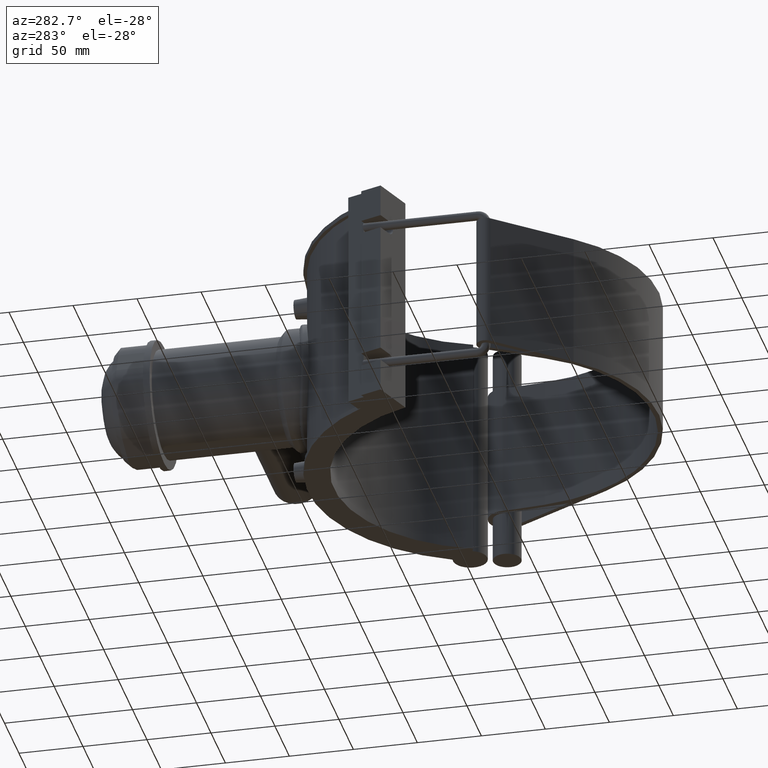
[diagram: clean part render]
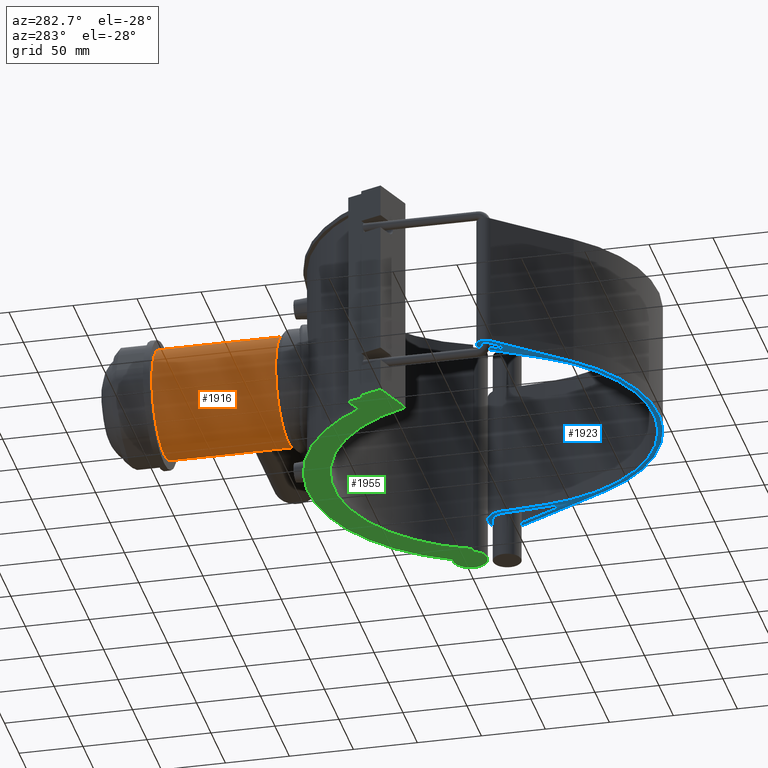
[diagram: same view with three faces highlighted in distinct colors, each labeled with its STEP entity id]
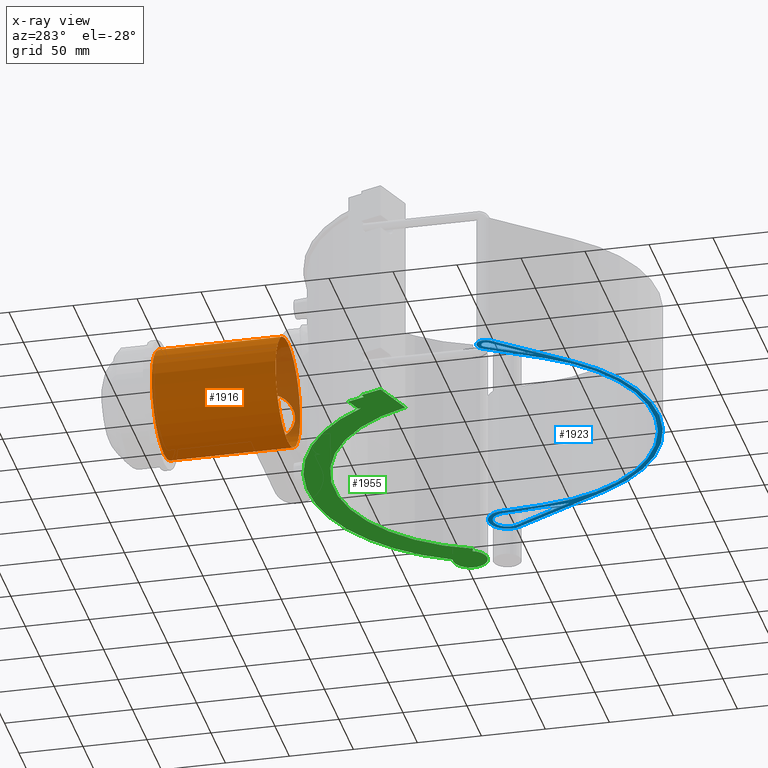
[diagram: x-ray of the same camera — body ghosted, the three highlighted faces saturated]
A machine part, auxiliary view with three faces highlighted in distinct colors.
The next image is the same camera in x-ray (body ghosted, the three faces saturated) — at least one of them is partly hidden behind the body in this view.
Their STEP definitions:

[orange] entity #1916 — the highlighted cylindrical surface (bore or boss wall) has radius 42.5 mm, axis along (0, 1, 0).
#370=FACE_BOUND('',#626,.T.);
#371=FACE_BOUND('',#627,.T.);
#404=B_SPLINE_CURVE_WITH_KNOTS('',3,(#3004,#3005,#3006,#3007,#3008,#3009,
#3010,#3011,#3012,#3013,#3014,#3015,#3016,#3017,#3018,#3019,#3020,#3021,
#3022,#3023,#3024,#3025,#3026,#3027,#3028,#3029,#3030,#3031,#3032,#3033,
#3034,#3035,#3036,#3037,#3038,#3039,#3040,#3041,#3042,#3043,#3044,#3045,
#3046,#3047,#3048,#3049,#3050,#3051,#3052,#3053,#3054,#3055,#3056,#3057,
#3058,#3059,#3060,#3061,#3062,#3063,#3064,#3065,#3066,#3067,#3068,#3069),
 .UNSPECIFIED.,.T.,.F.,(4,2,2,2,2,2,2,2,2,2,2,2,2,2,2,2,2,2,2,2,2,2,2,2,
2,2,2,2,2,2,2,2,4),(0.,0.383791804232439,0.767583608464878,1.15137541269732,
1.53516721692976,1.9181640537232,2.30116089051664,2.68415772731009,3.06715456410353,
3.45015140089698,3.83314823769042,4.21614507448387,4.59914191127731,4.98293371550975,
5.36672551974219,5.75051732397463,6.13430912820706,6.5181009324395,6.90189273667194,
7.28568454090438,7.66947634513682,8.05247318193026,8.43547001872371,8.81846685551715,
9.2014636923106,9.58446052910404,9.96745736589748,10.3504542026909,10.7334510394844,
11.1172428437168,11.5010346479493,11.8848264521817,12.2686182564141),
 .UNSPECIFIED.);
#426=CYLINDRICAL_SURFACE('',#2070,42.5);
#495=FACE_OUTER_BOUND('',#625,.T.);
#625=EDGE_LOOP('',(#1447));
#626=EDGE_LOOP('',(#1448));
#627=EDGE_LOOP('',(#1449));
#758=CIRCLE('',#2053,42.5);
#765=CIRCLE('',#2071,42.5000000000001);
#825=VERTEX_POINT('',#3003);
#869=VERTEX_POINT('',#3208);
#879=VERTEX_POINT('',#3277);
#1003=EDGE_CURVE('',#825,#825,#404,.T.);
#1071=EDGE_CURVE('',#869,#869,#758,.T.);
#1090=EDGE_CURVE('',#879,#879,#765,.T.);
#1447=ORIENTED_EDGE('',*,*,#1071,.T.);
#1448=ORIENTED_EDGE('',*,*,#1003,.T.);
#1449=ORIENTED_EDGE('',*,*,#1090,.F.);
#1916=ADVANCED_FACE('',(#495,#370,#371),#426,.T.);
#2053=AXIS2_PLACEMENT_3D('',#3209,#2369,#2370);
#2070=AXIS2_PLACEMENT_3D('',#3276,#2414,#2415);
#2071=AXIS2_PLACEMENT_3D('',#3278,#2416,#2417);
#2369=DIRECTION('center_axis',(0.,1.,3.06161699786838E-16));
#2370=DIRECTION('ref_axis',(1.,0.,0.));
#2414=DIRECTION('center_axis',(0.,1.,3.06161699786838E-16));
#2415=DIRECTION('ref_axis',(0.,0.,1.));
#2416=DIRECTION('center_axis',(0.,1.,3.06161699786838E-16));
#2417=DIRECTION('ref_axis',(1.,0.,0.));
#3003=CARTESIAN_POINT('',(37.5,185.,-20.));
#3004=CARTESIAN_POINT('Ctrl Pts',(37.5,185.,-20.));
#3005=CARTESIAN_POINT('Ctrl Pts',(37.5,183.720693985892,-20.));
#3006=CARTESIAN_POINT('Ctrl Pts',(37.5673632733615,182.40576138595,-19.8753096853659));
#3007=CARTESIAN_POINT('Ctrl Pts',(37.8360613140512,179.804730317012,-19.3589044712904));
#3008=CARTESIAN_POINT('Ctrl Pts',(38.0369889727961,178.51855047852,-18.9673876879955));
#3009=CARTESIAN_POINT('Ctrl Pts',(38.531539817867,176.062642785402,-17.9414242521939));
#3010=CARTESIAN_POINT('Ctrl Pts',(38.8249384165117,174.890581166041,-17.3061626768596));
#3011=CARTESIAN_POINT('Ctrl Pts',(39.4436368473074,172.727062527526,-15.8454606042391));
#3012=CARTESIAN_POINT('Ctrl Pts',(39.7683403657247,171.735561513551,-15.0198327610134));
#3013=CARTESIAN_POINT('Ctrl Pts',(40.3871158287734,169.981985257604,-13.2662565050662));
#3014=CARTESIAN_POINT('Ctrl Pts',(40.7040092831187,169.156608033693,-12.2756473866188));
#3015=CARTESIAN_POINT('Ctrl Pts',(41.2948028589662,167.695161354208,-10.1117331499041));
#3016=CARTESIAN_POINT('Ctrl Pts',(41.5682330065405,167.058977747585,-8.9383768407114));
#3017=CARTESIAN_POINT('Ctrl Pts',(42.02171956684,166.031942458684,-6.47978870451485));
#3018=CARTESIAN_POINT('Ctrl Pts',(42.2018577443893,165.640271960223,-5.19225527482705));
#3019=CARTESIAN_POINT('Ctrl Pts',(42.4410711513244,165.124215910523,-2.59071253669387));
#3020=CARTESIAN_POINT('Ctrl Pts',(42.5,165.,-1.27665612264482));
#3021=CARTESIAN_POINT('Ctrl Pts',(42.5,165.,1.27665612264481));
#3022=CARTESIAN_POINT('Ctrl Pts',(42.4410711513244,165.124215910523,2.59071253669387));
#3023=CARTESIAN_POINT('Ctrl Pts',(42.2018577443893,165.640271960223,5.19225527482705));
#3024=CARTESIAN_POINT('Ctrl Pts',(42.02171956684,166.031942458684,6.47978870451485));
#3025=CARTESIAN_POINT('Ctrl Pts',(41.5682330065405,167.058977747585,8.9383768407114));
#3026=CARTESIAN_POINT('Ctrl Pts',(41.2948028589662,167.695161354208,10.1117331499041));
#3027=CARTESIAN_POINT('Ctrl Pts',(40.7040092831187,169.156608033693,12.2756473866188));
#3028=CARTESIAN_POINT('Ctrl Pts',(40.3871158287735,169.981985257604,13.2662565050662));
#3029=CARTESIAN_POINT('Ctrl Pts',(39.7683403657247,171.735561513551,15.0198327610134));
#3030=CARTESIAN_POINT('Ctrl Pts',(39.4436368473074,172.727062527526,15.8454606042392));
#3031=CARTESIAN_POINT('Ctrl Pts',(38.8249384165117,174.890581166041,17.3061626768597));
#3032=CARTESIAN_POINT('Ctrl Pts',(38.531539817867,176.062642785402,17.9414242521939));
#3033=CARTESIAN_POINT('Ctrl Pts',(38.0369889727961,178.51855047852,18.9673876879955));
#3034=CARTESIAN_POINT('Ctrl Pts',(37.8360613140512,179.804730317012,19.3589044712904));
#3035=CARTESIAN_POINT('Ctrl Pts',(37.5673632733615,182.40576138595,19.8753096853659));
#3036=CARTESIAN_POINT('Ctrl Pts',(37.5,183.720693985892,20.));
#3037=CARTESIAN_POINT('Ctrl Pts',(37.5,186.279306014108,20.));
#3038=CARTESIAN_POINT('Ctrl Pts',(37.5673632733615,187.59423861405,19.8753096853659));
#3039=CARTESIAN_POINT('Ctrl Pts',(37.8360613140512,190.195269682988,19.3589044712904));
#3040=CARTESIAN_POINT('Ctrl Pts',(38.0369889727961,191.48144952148,18.9673876879955));
#3041=CARTESIAN_POINT('Ctrl Pts',(38.531539817867,193.937357214598,17.9414242521939));
#3042=CARTESIAN_POINT('Ctrl Pts',(38.8249384165117,195.109418833959,17.3061626768596));
#3043=CARTESIAN_POINT('Ctrl Pts',(39.4436368473074,197.272937472474,15.8454606042392));
#3044=CARTESIAN_POINT('Ctrl Pts',(39.7683403657247,198.264438486449,15.0198327610134));
#3045=CARTESIAN_POINT('Ctrl Pts',(40.3871158287735,200.018014742396,13.2662565050662));
#3046=CARTESIAN_POINT('Ctrl Pts',(40.7040092831187,200.843391966307,12.2756473866188));
#3047=CARTESIAN_POINT('Ctrl Pts',(41.2948028589662,202.304838645792,10.1117331499041));
#3048=CARTESIAN_POINT('Ctrl Pts',(41.5682330065405,202.941022252415,8.9383768407114));
#3049=CARTESIAN_POINT('Ctrl Pts',(42.02171956684,203.968057541316,6.47978870451485));
#3050=CARTESIAN_POINT('Ctrl Pts',(42.2018577443893,204.359728039777,5.19225527482705));
#3051=CARTESIAN_POINT('Ctrl Pts',(42.4410711513244,204.875784089477,2.59071253669387));
#3052=CARTESIAN_POINT('Ctrl Pts',(42.5,205.,1.27665612264482));
#3053=CARTESIAN_POINT('Ctrl Pts',(42.5,205.,-1.27665612264481));
#3054=CARTESIAN_POINT('Ctrl Pts',(42.4410711513244,204.875784089477,-2.59071253669386));
#3055=CARTESIAN_POINT('Ctrl Pts',(42.2018577443893,204.359728039777,-5.19225527482704));
#3056=CARTESIAN_POINT('Ctrl Pts',(42.02171956684,203.968057541316,-6.47978870451483));
#3057=CARTESIAN_POINT('Ctrl Pts',(41.5682330065405,202.941022252415,-8.93837684071139));
#3058=CARTESIAN_POINT('Ctrl Pts',(41.2948028589662,202.304838645792,-10.1117331499041));
#3059=CARTESIAN_POINT('Ctrl Pts',(40.7040092831187,200.843391966307,-12.2756473866188));
#3060=CARTESIAN_POINT('Ctrl Pts',(40.3871158287734,200.018014742396,-13.2662565050662));
#3061=CARTESIAN_POINT('Ctrl Pts',(39.7683403657247,198.264438486449,-15.0198327610134));
#3062=CARTESIAN_POINT('Ctrl Pts',(39.4436368473074,197.272937472474,-15.8454606042392));
#3063=CARTESIAN_POINT('Ctrl Pts',(38.8249384165117,195.109418833959,-17.3061626768597));
#3064=CARTESIAN_POINT('Ctrl Pts',(38.531539817867,193.937357214598,-17.9414242521939));
#3065=CARTESIAN_POINT('Ctrl Pts',(38.0369889727961,191.48144952148,-18.9673876879955));
#3066=CARTESIAN_POINT('Ctrl Pts',(37.8360613140512,190.195269682988,-19.3589044712904));
#3067=CARTESIAN_POINT('Ctrl Pts',(37.5673632733615,187.59423861405,-19.8753096853659));
#3068=CARTESIAN_POINT('Ctrl Pts',(37.5,186.279306014108,-20.));
#3069=CARTESIAN_POINT('Ctrl Pts',(37.5,185.,-20.));
#3208=CARTESIAN_POINT('',(0.,161.,42.5));
#3209=CARTESIAN_POINT('Origin',(0.,161.,1.10218211923262E-14));
#3276=CARTESIAN_POINT('Origin',(0.,209.375,2.58323934195145E-14));
#3277=CARTESIAN_POINT('',(0.,257.75,42.5000000000001));
#3278=CARTESIAN_POINT('Origin',(0.,257.75,4.06429656467028E-14));

[blue] entity #1923 — the highlighted planar face has unit normal (0, 0, 1).
#95=LINE('',#3318,#256);
#99=LINE('',#3326,#260);
#102=LINE('',#3337,#263);
#103=LINE('',#3341,#264);
#104=LINE('',#3345,#265);
#105=LINE('',#3349,#266);
#106=LINE('',#3355,#267);
#107=LINE('',#3356,#268);
#256=VECTOR('',#2430,52.9196756847128);
#260=VECTOR('',#2436,52.9196756847128);
#263=VECTOR('',#2445,87.3267515625168);
#264=VECTOR('',#2448,72.0453404647995);
#265=VECTOR('',#2451,49.6257854616819);
#266=VECTOR('',#2454,23.4220609933609);
#267=VECTOR('',#2459,39.6138549528074);
#268=VECTOR('',#2460,39.6138549528074);
#374=FACE_BOUND('',#637,.T.);
#375=FACE_BOUND('',#638,.T.);
#502=FACE_OUTER_BOUND('',#636,.T.);
#636=EDGE_LOOP('',(#1467,#1468,#1469,#1470,#1471,#1472,#1473,#1474,#1475,
#1476));
#637=EDGE_LOOP('',(#1477,#1478,#1479));
#638=EDGE_LOOP('',(#1480,#1481,#1482));
#767=CIRCLE('',#2080,14.8076923076923);
#768=CIRCLE('',#2081,14.8076923076923);
#769=CIRCLE('',#2082,128.75);
#770=CIRCLE('',#2083,7.25);
#771=CIRCLE('',#2084,125.);
#772=CIRCLE('',#2085,125.);
#773=CIRCLE('',#2086,3.49999999999997);
#774=CIRCLE('',#2087,11.0576923076923);
#882=VERTEX_POINT('',#3316);
#883=VERTEX_POINT('',#3317);
#886=VERTEX_POINT('',#3325);
#888=VERTEX_POINT('',#3331);
#889=VERTEX_POINT('',#3332);
#890=VERTEX_POINT('',#3334);
#891=VERTEX_POINT('',#3336);
#892=VERTEX_POINT('',#3338);
#893=VERTEX_POINT('',#3340);
#894=VERTEX_POINT('',#3342);
#895=VERTEX_POINT('',#3344);
#896=VERTEX_POINT('',#3346);
#897=VERTEX_POINT('',#3348);
#898=VERTEX_POINT('',#3351);
#899=VERTEX_POINT('',#3352);
#900=VERTEX_POINT('',#3354);
#1095=EDGE_CURVE('',#882,#883,#95,.T.);
#1099=EDGE_CURVE('',#883,#886,#99,.T.);
#1102=EDGE_CURVE('',#888,#889,#767,.T.);
#1103=EDGE_CURVE('',#889,#890,#768,.T.);
#1104=EDGE_CURVE('',#890,#891,#102,.T.);
#1105=EDGE_CURVE('',#891,#892,#769,.T.);
#1106=EDGE_CURVE('',#892,#893,#103,.T.);
#1107=EDGE_CURVE('',#893,#894,#770,.T.);
#1108=EDGE_CURVE('',#894,#895,#104,.T.);
#1109=EDGE_CURVE('',#895,#896,#771,.T.);
#1110=EDGE_CURVE('',#896,#897,#105,.T.);
#1111=EDGE_CURVE('',#888,#897,#772,.T.);
#1112=EDGE_CURVE('',#898,#899,#773,.T.);
#1113=EDGE_CURVE('',#899,#900,#106,.T.);
#1114=EDGE_CURVE('',#900,#898,#107,.T.);
#1115=EDGE_CURVE('',#882,#886,#774,.T.);
#1467=ORIENTED_EDGE('',*,*,#1102,.T.);
#1468=ORIENTED_EDGE('',*,*,#1103,.T.);
#1469=ORIENTED_EDGE('',*,*,#1104,.T.);
#1470=ORIENTED_EDGE('',*,*,#1105,.T.);
#1471=ORIENTED_EDGE('',*,*,#1106,.T.);
#1472=ORIENTED_EDGE('',*,*,#1107,.T.);
#1473=ORIENTED_EDGE('',*,*,#1108,.T.);
#1474=ORIENTED_EDGE('',*,*,#1109,.T.);
#1475=ORIENTED_EDGE('',*,*,#1110,.T.);
#1476=ORIENTED_EDGE('',*,*,#1111,.F.);
#1477=ORIENTED_EDGE('',*,*,#1112,.T.);
#1478=ORIENTED_EDGE('',*,*,#1113,.T.);
#1479=ORIENTED_EDGE('',*,*,#1114,.T.);
#1480=ORIENTED_EDGE('',*,*,#1095,.T.);
#1481=ORIENTED_EDGE('',*,*,#1099,.T.);
#1482=ORIENTED_EDGE('',*,*,#1115,.F.);
#1829=PLANE('',#2079);
#1923=ADVANCED_FACE('',(#502,#374,#375),#1829,.F.);
#2079=AXIS2_PLACEMENT_3D('',#3330,#2439,#2440);
#2080=AXIS2_PLACEMENT_3D('',#3333,#2441,#2442);
#2081=AXIS2_PLACEMENT_3D('',#3335,#2443,#2444);
#2082=AXIS2_PLACEMENT_3D('',#3339,#2446,#2447);
#2083=AXIS2_PLACEMENT_3D('',#3343,#2449,#2450);
#2084=AXIS2_PLACEMENT_3D('',#3347,#2452,#2453);
#2085=AXIS2_PLACEMENT_3D('',#3350,#2455,#2456);
#2086=AXIS2_PLACEMENT_3D('',#3353,#2457,#2458);
#2087=AXIS2_PLACEMENT_3D('',#3357,#2461,#2462);
#2430=DIRECTION('',(-0.0905873526607484,-0.995888513608786,0.));
#2436=DIRECTION('',(0.481783564841131,0.876290246806942,0.));
#2439=DIRECTION('center_axis',(0.,0.,1.));
#2440=DIRECTION('ref_axis',(1.,0.,0.));
#2441=DIRECTION('center_axis',(0.,0.,-1.));
#2442=DIRECTION('ref_axis',(0.333937766224138,-0.942595124265574,0.));
#2443=DIRECTION('center_axis',(0.,0.,-1.));
#2444=DIRECTION('ref_axis',(0.333937766224138,-0.942595124265574,0.));
#2445=DIRECTION('',(-0.481783564841131,-0.876290246806942,0.));
#2446=DIRECTION('center_axis',(0.,0.,-1.));
#2447=DIRECTION('ref_axis',(0.98858601250743,0.150657545030643,0.));
#2448=DIRECTION('',(-0.654222560450905,0.756302083427688,0.));
#2449=DIRECTION('center_axis',(0.,0.,-1.));
#2450=DIRECTION('ref_axis',(-1.,0.,0.));
#2451=DIRECTION('',(0.511479804338621,-0.859295298342616,0.));
#2452=DIRECTION('center_axis',(0.,0.,1.));
#2453=DIRECTION('ref_axis',(0.859295298342616,0.511479804338621,0.));
#2454=DIRECTION('',(0.090587352660749,0.995888513608786,0.));
#2455=DIRECTION('center_axis',(0.,0.,-1.));
#2456=DIRECTION('ref_axis',(0.998677892414806,-0.0514049336340487,0.));
#2457=DIRECTION('center_axis',(0.,0.,1.));
#2458=DIRECTION('ref_axis',(0.,-1.,0.));
#2459=DIRECTION('',(0.654222560450905,-0.756302083427688,0.));
#2460=DIRECTION('',(-0.511479804338621,0.859295298342616,0.));
#2461=DIRECTION('center_axis',(0.,0.,-1.));
#2462=DIRECTION('ref_axis',(1.,0.,0.));
#3316=CARTESIAN_POINT('',(130.906897846979,22.6297365660324,-52.8));
#3317=CARTESIAN_POINT('',(126.113044523036,-30.0723605922753,-52.8));
#3318=CARTESIAN_POINT('',(123.663223567475,-57.0049121944555,-52.8));
#3325=CARTESIAN_POINT('',(151.608874524653,16.300635074425,-52.8));
#3326=CARTESIAN_POINT('',(116.363818225473,-47.8047046195874,-52.8));
#3330=CARTESIAN_POINT('Origin',(12.2062893552673,-74.02203081777,-52.8));
#3331=CARTESIAN_POINT('',(127.112526086027,21.8078621826871,-52.8));
#3332=CARTESIAN_POINT('',(137.721878529248,35.8284318855429,-52.8));
#3333=CARTESIAN_POINT('Origin',(141.91912660323,21.6280494933414,-52.8));
#3334=CARTESIAN_POINT('',(154.894962950179,14.4939467062708,-52.8));
#3335=CARTESIAN_POINT('Origin',(141.91912660323,21.6280494933414,-52.8));
#3336=CARTESIAN_POINT('',(112.822369276394,-62.0296339732956,-52.8));
#3337=CARTESIAN_POINT('',(112.822369276394,-62.0296339732956,-52.8));
#3338=CARTESIAN_POINT('',(-97.3738932413148,-84.2311546580541,-52.8));
#3339=CARTESIAN_POINT('Origin',(0.,0.,-52.8));
#3340=CARTESIAN_POINT('',(-144.507580348753,-29.7431135632691,-52.8));
#3341=CARTESIAN_POINT('',(-144.507580348753,-29.7431135632691,-52.8));
#3342=CARTESIAN_POINT('',(-132.794499330919,-21.291771418545,-52.8));
#3343=CARTESIAN_POINT('Origin',(-139.024390243902,-25.,-52.8));
#3344=CARTESIAN_POINT('',(-107.411912292827,-63.9349755423277,-52.8));
#3345=CARTESIAN_POINT('',(-107.411912292827,-63.9349755423277,-52.8));
#3346=CARTESIAN_POINT('',(124.486064201098,-11.3234190825937,-52.8));
#3347=CARTESIAN_POINT('Origin',(0.,0.,-52.8));
#3348=CARTESIAN_POINT('',(126.607806700345,12.0023424257388,-52.8));
#3349=CARTESIAN_POINT('',(127.280449110332,19.3971589226953,-52.8));
#3350=CARTESIAN_POINT('Origin',(2.12174249924715,23.3257615083324,-52.8));
#3351=CARTESIAN_POINT('',(-136.016856699703,-23.2098206848148,-52.8));
#3352=CARTESIAN_POINT('',(-141.671447535899,-27.2897789615782,-52.8));
#3353=CARTESIAN_POINT('Origin',(-139.024390243902,-25.,-52.8));
#3354=CARTESIAN_POINT('',(-115.755169919343,-57.2498199949886,-52.8));
#3355=CARTESIAN_POINT('',(-97.1797382939693,-78.7236096318914,-52.8));
#3356=CARTESIAN_POINT('',(-95.331273929945,-91.562333702586,-52.8));
#3357=CARTESIAN_POINT('Origin',(141.91912660323,21.6280494933414,-52.8));

[green] entity #1955 — the highlighted planar face has unit normal (0, 0, 1).
#137=LINE('',#3470,#298);
#153=LINE('',#3513,#314);
#157=LINE('',#3519,#318);
#168=LINE('',#3542,#329);
#177=LINE('',#3559,#338);
#179=LINE('',#3562,#340);
#181=LINE('',#3577,#342);
#298=VECTOR('',#2558,34.9999999999998);
#314=VECTOR('',#2602,3.5);
#318=VECTOR('',#2610,17.5);
#329=VECTOR('',#2627,2.85785447980464);
#338=VECTOR('',#2642,14.);
#340=VECTOR('',#2646,14.);
#342=VECTOR('',#2662,4.03846153846153);
#534=FACE_OUTER_BOUND('',#676,.T.);
#676=EDGE_LOOP('',(#1661,#1662,#1663,#1664,#1665,#1666,#1667,#1668,#1669,
#1670));
#796=CIRCLE('',#2149,145.35);
#797=CIRCLE('',#2150,13.4615384615385);
#798=CIRCLE('',#2151,125.);
#941=VERTEX_POINT('',#3467);
#942=VERTEX_POINT('',#3469);
#954=VERTEX_POINT('',#3510);
#955=VERTEX_POINT('',#3512);
#963=VERTEX_POINT('',#3539);
#964=VERTEX_POINT('',#3541);
#969=VERTEX_POINT('',#3557);
#973=VERTEX_POINT('',#3572);
#974=VERTEX_POINT('',#3574);
#975=VERTEX_POINT('',#3576);
#1167=EDGE_CURVE('',#942,#941,#137,.T.);
#1189=EDGE_CURVE('',#955,#954,#153,.T.);
#1193=EDGE_CURVE('',#941,#955,#157,.T.);
#1204=EDGE_CURVE('',#964,#963,#168,.T.);
#1213=EDGE_CURVE('',#954,#969,#177,.T.);
#1215=EDGE_CURVE('',#969,#964,#179,.T.);
#1220=EDGE_CURVE('',#973,#963,#796,.T.);
#1221=EDGE_CURVE('',#973,#974,#797,.T.);
#1222=EDGE_CURVE('',#974,#975,#181,.T.);
#1223=EDGE_CURVE('',#975,#942,#798,.T.);
#1661=ORIENTED_EDGE('',*,*,#1167,.T.);
#1662=ORIENTED_EDGE('',*,*,#1193,.T.);
#1663=ORIENTED_EDGE('',*,*,#1189,.T.);
#1664=ORIENTED_EDGE('',*,*,#1213,.T.);
#1665=ORIENTED_EDGE('',*,*,#1215,.T.);
#1666=ORIENTED_EDGE('',*,*,#1204,.T.);
#1667=ORIENTED_EDGE('',*,*,#1220,.F.);
#1668=ORIENTED_EDGE('',*,*,#1221,.T.);
#1669=ORIENTED_EDGE('',*,*,#1222,.T.);
#1670=ORIENTED_EDGE('',*,*,#1223,.T.);
#1855=PLANE('',#2148);
#1955=ADVANCED_FACE('',(#534),#1855,.F.);
#2148=AXIS2_PLACEMENT_3D('',#3571,#2656,#2657);
#2149=AXIS2_PLACEMENT_3D('',#3573,#2658,#2659);
#2150=AXIS2_PLACEMENT_3D('',#3575,#2660,#2661);
#2151=AXIS2_PLACEMENT_3D('',#3578,#2663,#2664);
#2558=DIRECTION('',(-0.939692620785908,0.342020143325669,0.));
#2602=DIRECTION('',(0.939692620785908,-0.342020143325669,0.));
#2610=DIRECTION('',(0.34202014332567,0.939692620785908,0.));
#2627=DIRECTION('',(-0.342020143325668,-0.939692620785909,0.));
#2642=DIRECTION('',(0.34202014332567,0.939692620785908,0.));
#2646=DIRECTION('',(0.939692620785909,-0.342020143325668,0.));
#2656=DIRECTION('center_axis',(0.,0.,1.));
#2657=DIRECTION('ref_axis',(1.,0.,0.));
#2658=DIRECTION('center_axis',(0.,0.,1.));
#2659=DIRECTION('ref_axis',(0.976614427290077,0.21499828001376,0.));
#2660=DIRECTION('center_axis',(0.,0.,-1.));
#2661=DIRECTION('ref_axis',(-1.,0.,0.));
#2662=DIRECTION('',(-0.939692620785908,-0.342020143325668,0.));
#2663=DIRECTION('center_axis',(0.,0.,1.));
#2664=DIRECTION('ref_axis',(-1.,0.,0.));
#3467=CARTESIAN_POINT('',(-150.350819325745,54.7232229321069,-88.));
#3469=CARTESIAN_POINT('',(-117.461577598239,42.7525179157086,-88.));
#3470=CARTESIAN_POINT('',(-135.969639232124,49.4889014444071,-88.));
#3510=CARTESIAN_POINT('',(-141.076542644795,69.9707732942205,-88.));
#3512=CARTESIAN_POINT('',(-144.365466817546,71.1678437958603,-88.));
#3513=CARTESIAN_POINT('',(-144.365466817546,71.1678437958603,-88.));
#3519=CARTESIAN_POINT('',(-150.350819325745,54.7232229321069,-88.));
#3539=CARTESIAN_POINT('',(-124.11000774602,75.6526832127115,-88.));
#3541=CARTESIAN_POINT('',(-123.132563947233,78.3381879786639,-88.));
#3542=CARTESIAN_POINT('',(-123.132563947233,78.3381879786639,-88.));
#3557=CARTESIAN_POINT('',(-136.288260638236,83.1264699852232,-88.));
#3559=CARTESIAN_POINT('',(-141.076542644795,69.9707732942205,-88.));
#3562=CARTESIAN_POINT('',(-136.288260638236,83.1264699852232,-88.));
#3571=CARTESIAN_POINT('Origin',(-153.286013339469,-1.23274411615442E-16,
-88.));
#3572=CARTESIAN_POINT('',(131.473839720461,61.9778344987827,-88.));
#3573=CARTESIAN_POINT('Origin',(0.,0.,-88.));
#3574=CARTESIAN_POINT('',(121.256490105259,44.1337531099084,-88.));
#3575=CARTESIAN_POINT('Origin',(133.906198461992,48.7378704239078,-88.));
#3576=CARTESIAN_POINT('',(117.461577598239,42.7525179157086,-88.));
#3577=CARTESIAN_POINT('',(-67.6774780165077,-24.6325875282141,-88.));
#3578=CARTESIAN_POINT('Origin',(0.,0.,-88.));